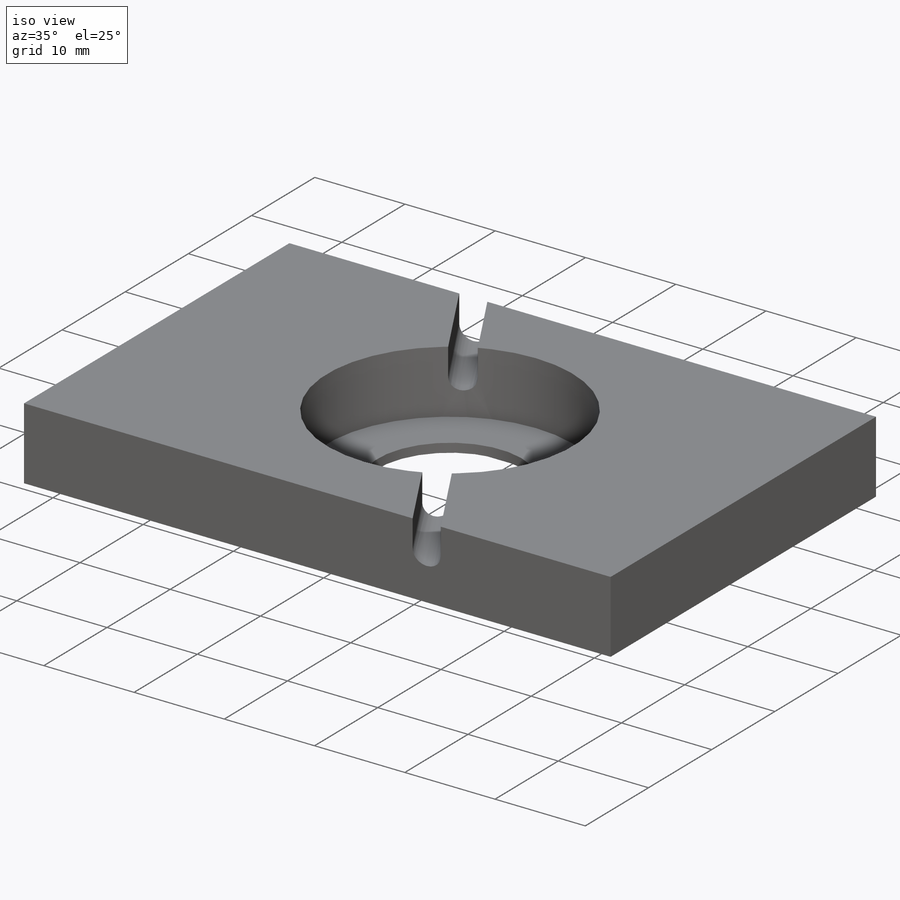
[diagram: iso view]
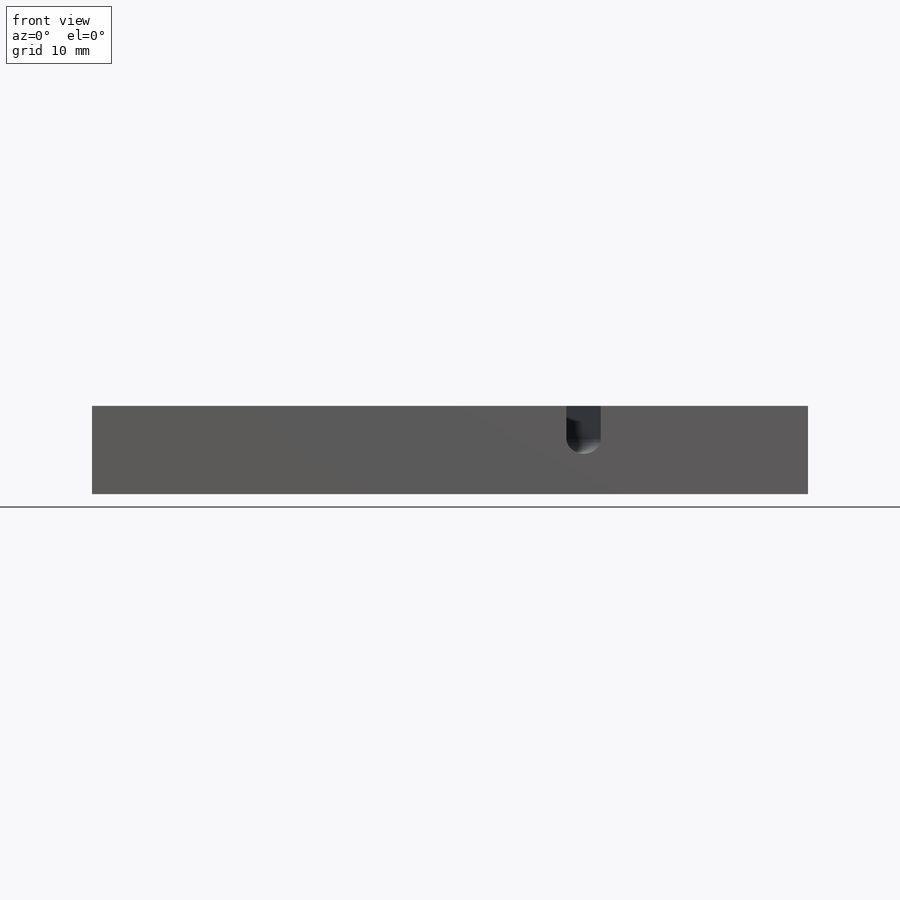
[diagram: front view]
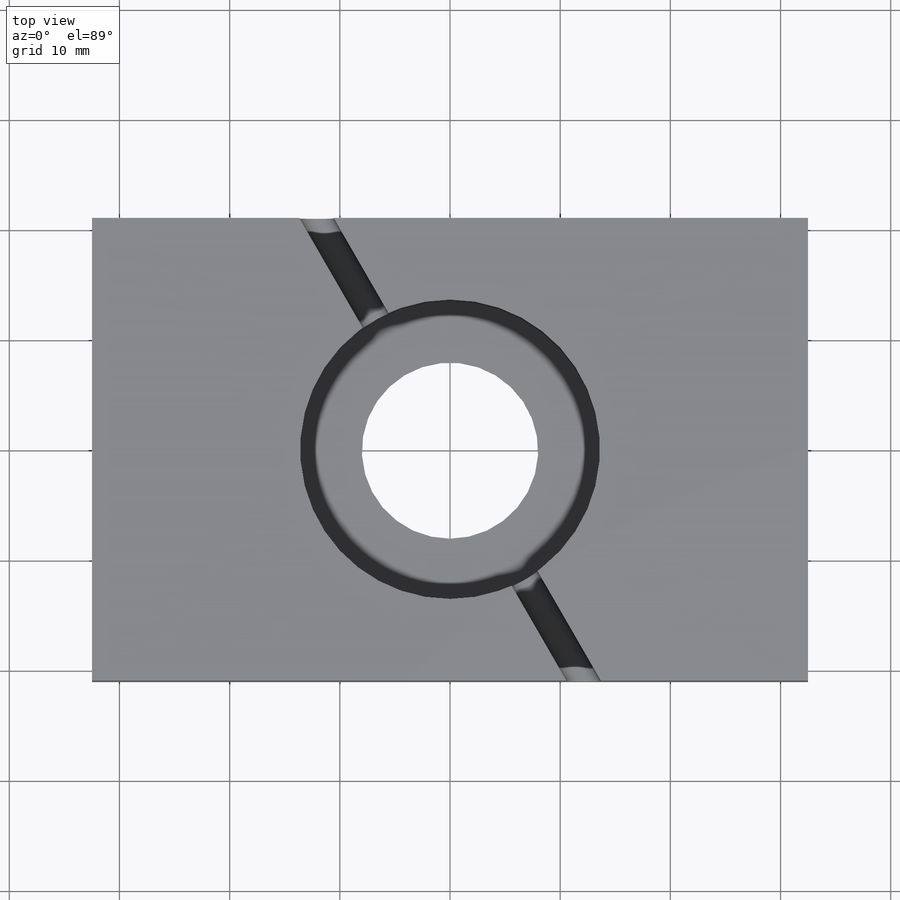
[diagram: top view]
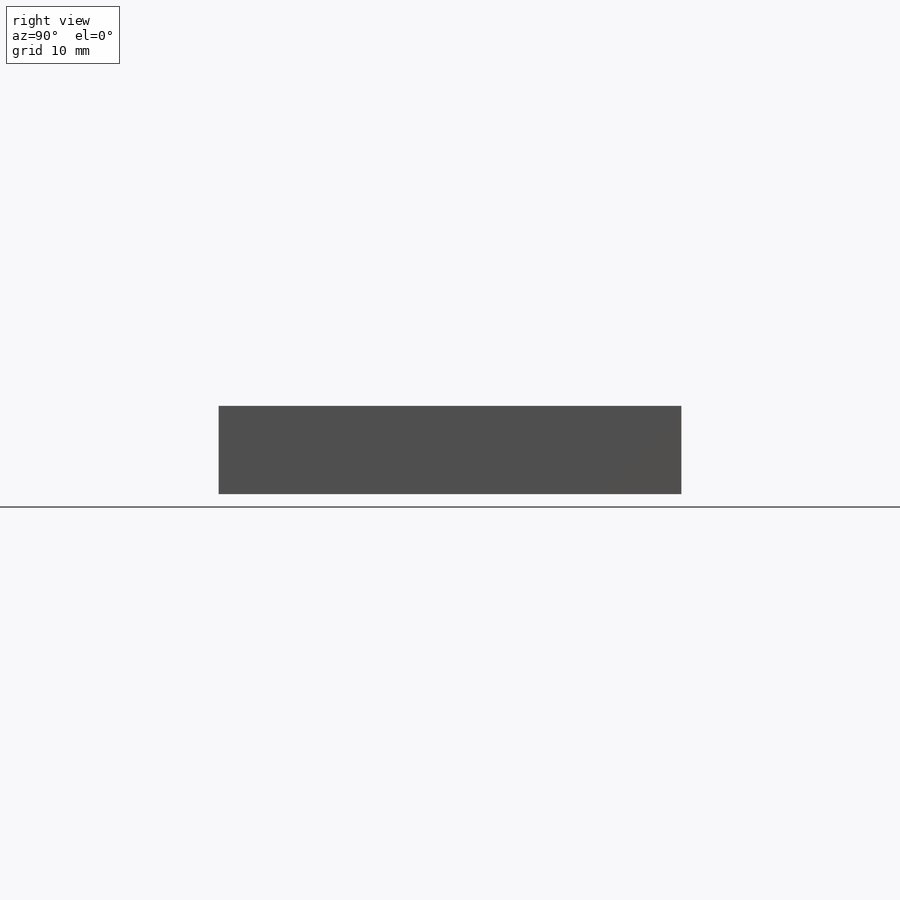
[diagram: right view]
SOLIDWORKS PART (.sldprt)
format: sldprt  version: not decoded by parser v0  size: 266,752 bytes
history: native  units: mm
features: sketch x10, extrude x5, cut_extrude x4, plane x3, material x1 (+8 scaffold rows collapsed)
feature tree (31):
  scaffold x8  (default folders/planes/origin — collapsed)
  material  "Materiale <non specificato>"
  plane  "Piano frontale"
  plane  "Piano superiore"
  plane  "Piano destro"
  sketch  "Schizzo1"  dims[D1=54.0mm]
  extrude  "Estrusione-Estrusione1"  Depth=1mm
  sketch  "Schizzo2"  dims[D1=~4.062538mm]
  cut_extrude  "Taglio-Estrusione1"  [1 undecoded]
  sketch  "Schizzo3"  dims[D1=54.0mm]
  extrude  "Estrusione-Estrusione2"  Depth=5mm
  sketch  "Schizzo5"  dims[D1=42.0mm D2=65.0mm]
  extrude  "Estrusione-Estrusione3"  Depth=2mm
  sketch  "Schizzo6"  dims[c1.D1=48.38mm c1.D2=7.5mm c1.D3=7.5mm c1.D4=~9.616652mm c2.D4=30.0deg c2.D5=~6.415555mm c3.D5=90.0deg]
  sketch  "Schizzo3D1"  dims[c1.D2=2.7mm c1.D1=~1.345436mm c2.D1=90.0deg c3.D1=1.0mm]
  cut_extrude  "Taglio-Estrusione2"  [1 undecoded]
  sketch  "Schizzo3D2"  dims[c1.D1=~1.143005mm c1.D3=2.0mm c1.D2=~2.790907mm c2.D1=2.7mm c3.D1=2.7mm c3.D2=5.0mm c3.D3=5.0mm]
  cut_extrude  "Taglio-Estrusione3"  [1 undecoded]
  sketch  "Schizzo8"  dims[D1=42.0mm D2=65.0mm]
  cut_extrude  "Taglio-Estrusione5"  [1 undecoded]
  sketch  "Schizzo10"
  extrude  "Estrusione-Estrusione4"  Depth=5mm
  sketch  "Schizzo11"
  extrude  "Estrusione-Estrusione5"  Depth=5mm
decode coverage: 13 of 19 modeling features carry decoded parameters
note: ~ marks probable driven/reference dimensions
note: 4 parameter values undecoded
summary: no parameter record found for 4 features
note: suppression state not decoded; provenance and decode notes live in map.json
